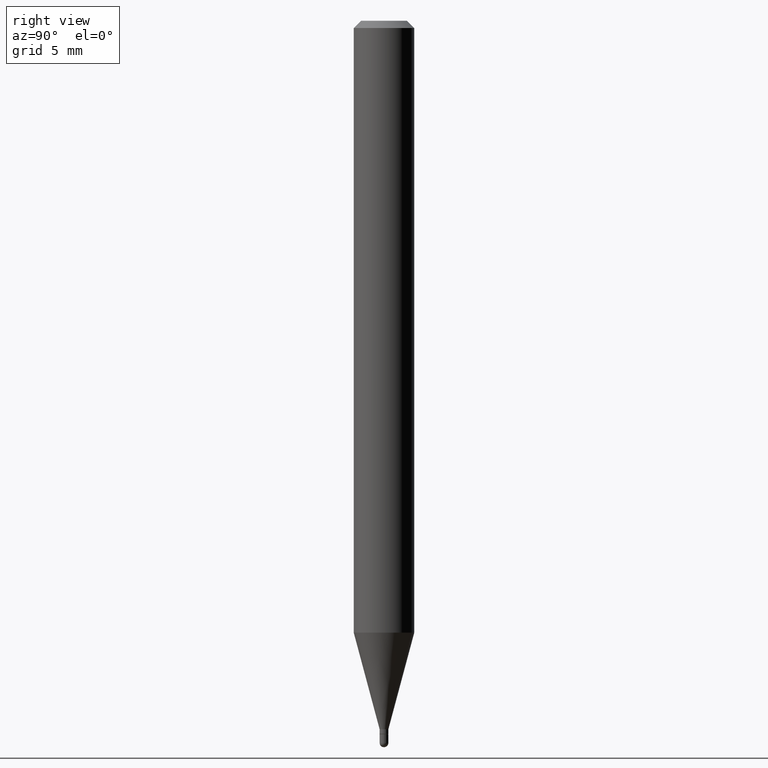
[diagram: clean part render]
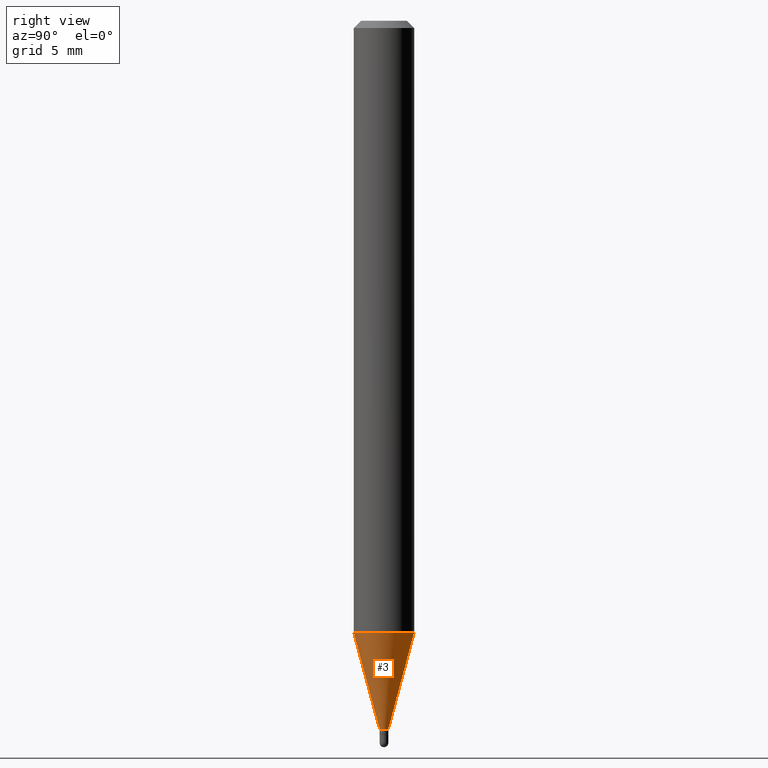
[diagram: same view with one face highlighted and labeled with its STEP entity id]
A machine part, right view. The second image highlights one B-rep face of the part: STEP entity #3.
In plain terms, the highlighted conical surface has half-angle 15 deg.
Its self-contained STEP definition (entity closure, byte-faithful):
#3 = ADVANCED_FACE ( 'NONE', ( #457 ), #400, .T. ) ;
#4 = CARTESIAN_POINT ( 'NONE',  ( 4.440892098500932831E-16, 0.06249999999999556605, -1.263335281795065823 ) ) ;
#5 = VERTEX_POINT ( 'NONE', #224 ) ;
#22 = DIRECTION ( 'NONE',  ( -2.445465957590144447E-29, 3.491485418193306478E-15, 1.000000000000000000 ) ) ;
#24 = AXIS2_PLACEMENT_3D ( 'NONE', #303, #22, #141 ) ;
#38 = EDGE_CURVE ( 'NONE', #5, #386, #337, .T. ) ;
#40 = CARTESIAN_POINT ( 'NONE',  ( 6.394884621844422714E-17, 0.008999999999994814232, -1.462999999999999856 ) ) ;
#59 = DIRECTION ( 'NONE',  ( -6.982962677686265922E-15, -1.000000000000000000, 0.000000000000000000 ) ) ;
#80 = CARTESIAN_POINT ( 'NONE',  ( 3.577716695954381229E-29, -5.108043166816806907E-15, -1.462999999999999856 ) ) ;
#84 = CARTESIAN_POINT ( 'NONE',  ( -6.284666409914007187E-17, -0.009000000000005030018, -1.462999999999999856 ) ) ;
#113 = CARTESIAN_POINT ( 'NONE',  ( -6.284666409914007187E-17, -0.009000000000005030018, -1.462999999999999856 ) ) ;
#141 = DIRECTION ( 'NONE',  ( -6.982962677686265922E-15, -1.000000000000000000, 4.370956789862821150E-15 ) ) ;
#144 = CARTESIAN_POINT ( 'NONE',  ( 3.577716695954381229E-29, -5.108043166816806907E-15, -1.462999999999999856 ) ) ;
#147 = DIRECTION ( 'NONE',  ( -6.982962677686265922E-15, -1.000000000000000000, 0.000000000000000000 ) ) ;
#157 = CARTESIAN_POINT ( 'NONE',  ( 2.540190280342689277E-16, 0.008999999999994814232, -1.462999999999999856 ) ) ;
#176 = VECTOR ( 'NONE', #321, 39.37007874015748143 ) ;
#220 = AXIS2_PLACEMENT_3D ( 'NONE', #80, #504, #147 ) ;
#224 = CARTESIAN_POINT ( 'NONE',  ( -4.364351673553608052E-16, -0.06250000000000441314, -1.263335281795065157 ) ) ;
#232 = EDGE_CURVE ( 'NONE', #406, #386, #501, .T. ) ;
#264 = EDGE_CURVE ( 'NONE', #275, #406, #452, .T. ) ;
#275 = VERTEX_POINT ( 'NONE', #113 ) ;
#295 = VECTOR ( 'NONE', #420, 39.37007874015748143 ) ;
#303 = CARTESIAN_POINT ( 'NONE',  ( 3.089443424652384785E-29, -4.410916714676602621E-15, -1.263335281795065601 ) ) ;
#320 = ORIENTED_EDGE ( 'NONE', *, *, #38, .F. ) ;
#321 = DIRECTION ( 'NONE',  ( -1.807323732225330928E-15, -0.2588190451025182970, 0.9659258262890689783 ) ) ;
#324 = LINE ( 'NONE', #84, #176 ) ;
#337 = CIRCLE ( 'NONE', #24, 0.06250000000000000000 ) ;
#359 = EDGE_CURVE ( 'NONE', #275, #5, #324, .T. ) ;
#362 = ORIENTED_EDGE ( 'NONE', *, *, #359, .F. ) ;
#364 = ORIENTED_EDGE ( 'NONE', *, *, #264, .T. ) ;
#386 = VERTEX_POINT ( 'NONE', #4 ) ;
#400 = CONICAL_SURFACE ( 'NONE', #424, 0.008999999999999922992, 0.2617993877991502960 ) ;
#402 = ORIENTED_EDGE ( 'NONE', *, *, #232, .T. ) ;
#406 = VERTEX_POINT ( 'NONE', #157 ) ;
#415 = DIRECTION ( 'NONE',  ( -2.445465957590144447E-29, 3.491485418193306478E-15, 1.000000000000000000 ) ) ;
#420 = DIRECTION ( 'NONE',  ( 1.839019923739601104E-15, 0.2588190451025250693, 0.9659258262890670910 ) ) ;
#424 = AXIS2_PLACEMENT_3D ( 'NONE', #144, #415, #59 ) ;
#452 = CIRCLE ( 'NONE', #220, 0.008999999999999922992 ) ;
#457 = FACE_OUTER_BOUND ( 'NONE', #502, .T. ) ;
#501 = LINE ( 'NONE', #40, #295 ) ;
#502 = EDGE_LOOP ( 'NONE', ( #364, #402, #320, #362 ) ) ;
#504 = DIRECTION ( 'NONE',  ( -2.445465957590144447E-29, 3.491485418193306478E-15, 1.000000000000000000 ) ) ;